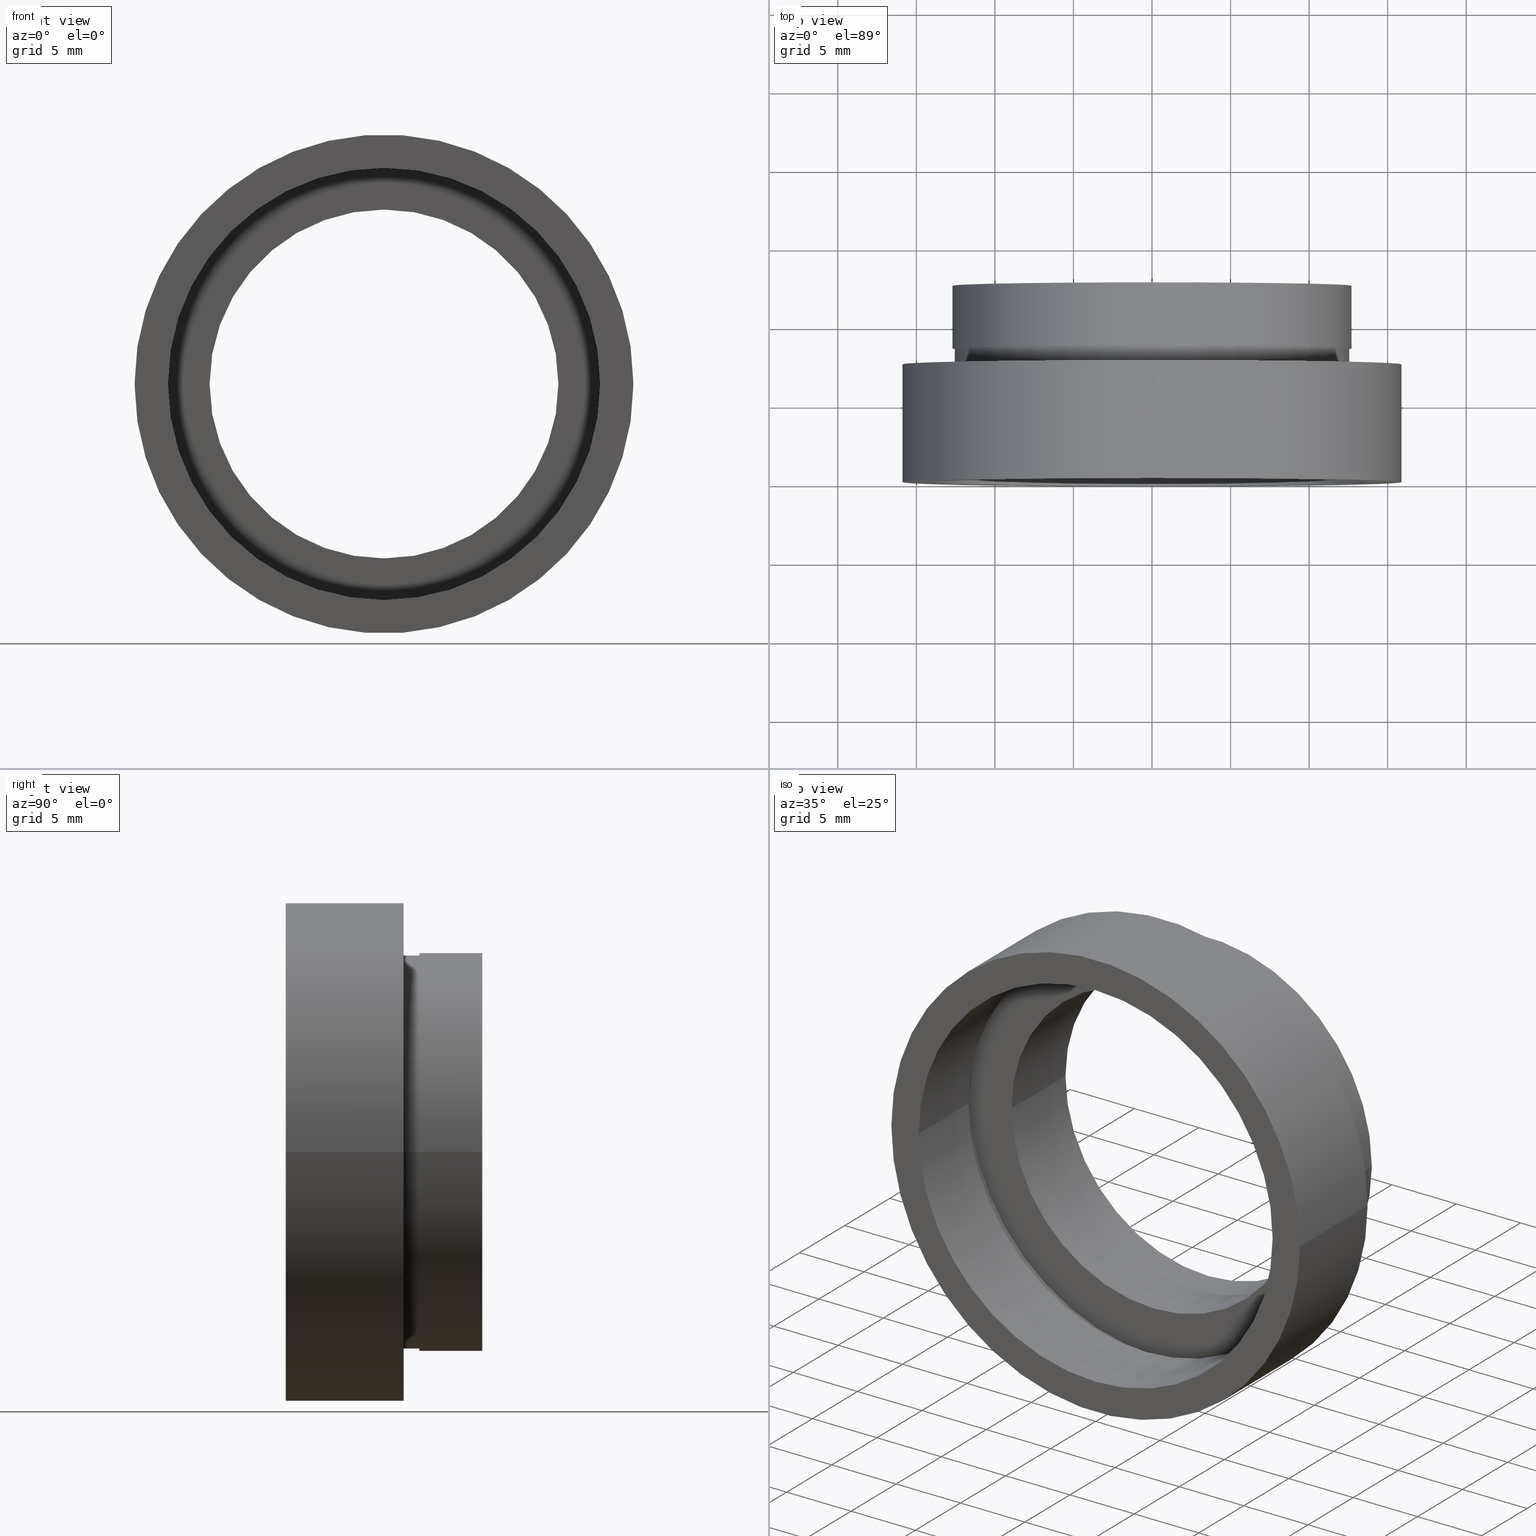
[diagram: canonical four-view strip — front | top / right | iso, engineering-drawing reading convention]
A machine part, canonical four-view strip (front | top / right | iso — engineering-drawing reading convention). The complete STEP part file that produces these views, byte-faithful:
ISO-10303-21;
HEADER;
FILE_DESCRIPTION (( 'STEP AP214' ),
    '1' );
FILE_NAME ('504068.STEP',
    '2019-10-08T05:58:54',
    ( 'user' ),
    ( '΢���й�' ),
    'SwSTEP 2.0',
    'SolidWorks 2016',
    '' );
FILE_SCHEMA (( 'AUTOMOTIVE_DESIGN' ));
ENDSEC;

DATA;
#1 = ORIENTED_EDGE ( 'NONE', *, *, #215, .T. ) ;
#2 = CARTESIAN_POINT ( 'NONE',  ( 1.394385078907593200E-015, 5.499999999999996400, 0.0000000000000000000 ) ) ;
#3 = ORIENTED_EDGE ( 'NONE', *, *, #251, .F. ) ;
#4 = DIRECTION ( 'NONE',  ( 0.0000000000000000000, 0.0000000000000000000, 1.000000000000000000 ) ) ;
#5 = AXIS2_PLACEMENT_3D ( 'NONE', #470, #411, #72 ) ;
#6 = CARTESIAN_POINT ( 'NONE',  ( 0.0000000000000000000, 16.88601823708207700, 0.0000000000000000000 ) ) ;
#7 = PLANE ( 'NONE',  #384 ) ;
#8 = DIRECTION ( 'NONE',  ( -1.224646799147351000E-016, 1.000000000000000000, -0.0000000000000000000 ) ) ;
#9 =( NAMED_UNIT ( * ) PLANE_ANGLE_UNIT ( ) SI_UNIT ( $, .RADIAN. ) );
#10 = ORIENTED_EDGE ( 'NONE', *, *, #478, .F. ) ;
#11 = DIRECTION ( 'NONE',  ( -1.000000000000000000, -1.208866533781747400E-016, 0.0000000000000000000 ) ) ;
#12 = MECHANICAL_DESIGN_GEOMETRIC_PRESENTATION_REPRESENTATION (  '', ( #450 ), #171 ) ;
#13 = APPLICATION_CONTEXT ( 'automotive_design' ) ;
#14 = SURFACE_STYLE_FILL_AREA ( #557 ) ;
#15 = ORIENTED_EDGE ( 'NONE', *, *, #132, .F. ) ;
#16 = CARTESIAN_POINT ( 'NONE',  ( 11.10000000000000100, 16.88601823708207700, 1.359357947053562400E-015 ) ) ;
#17 = CARTESIAN_POINT ( 'NONE',  ( 5.371323195044474300E-016, 12.49999999999999600, 0.0000000000000000000 ) ) ;
#18 = AXIS2_PLACEMENT_3D ( 'NONE', #122, #250, #611 ) ;
#19 = FACE_BOUND ( 'NONE', #370, .T. ) ;
#20 = FACE_BOUND ( 'NONE', #460, .T. ) ;
#21 = DIRECTION ( 'NONE',  ( -1.000000000000000000, 0.0000000000000000000, 0.0000000000000000000 ) ) ;
#22 = DIRECTION ( 'NONE',  ( -1.000000000000000000, -1.224646799147351000E-016, 0.0000000000000000000 ) ) ;
#23 = AXIS2_PLACEMENT_3D ( 'NONE', #136, #145, #94 ) ;
#24 = ORIENTED_EDGE ( 'NONE', *, *, #363, .T. ) ;
#25 = ORIENTED_EDGE ( 'NONE', *, *, #433, .F. ) ;
#26 = CYLINDRICAL_SURFACE ( 'NONE', #293, 11.10000000000000100 ) ;
#27 = DIRECTION ( 'NONE',  ( -1.000000000000000000, -2.185478394931410600E-016, 0.0000000000000000000 ) ) ;
#28 = CIRCLE ( 'NONE', #23, 13.75000000000000200 ) ;
#29 = VERTEX_POINT ( 'NONE', #560 ) ;
#30 = ORIENTED_EDGE ( 'NONE', *, *, #165, .F. ) ;
#31 = MANIFOLD_SOLID_BREP ( '��ת1', #280 ) ;
#32 =( NAMED_UNIT ( * ) SI_UNIT ( $, .STERADIAN. ) SOLID_ANGLE_UNIT ( ) );
#33 = CARTESIAN_POINT ( 'NONE',  ( 14.35000000000000000, 5.499999999999998200, 1.757368156776451600E-015 ) ) ;
#34 = AXIS2_PLACEMENT_3D ( 'NONE', #147, #539, #522 ) ;
#35 = CIRCLE ( 'NONE', #359, 11.10000000000000100 ) ;
#36 = CARTESIAN_POINT ( 'NONE',  ( 0.0000000000000000000, 16.88601823708207700, 0.0000000000000000000 ) ) ;
#37 = DIRECTION ( 'NONE',  ( 1.000000000000000000, 1.224646799147351000E-016, 0.0000000000000000000 ) ) ;
#38 = CARTESIAN_POINT ( 'NONE',  ( -11.10000000000000100, 12.49999999999999500, 0.0000000000000000000 ) ) ;
#39 = ORIENTED_EDGE ( 'NONE', *, *, #211, .T. ) ;
#40 = DIRECTION ( 'NONE',  ( -1.000000000000000000, -1.224646799147350700E-016, 0.0000000000000000000 ) ) ;
#41 = EDGE_LOOP ( 'NONE', ( #447, #542, #523, #432 ) ) ;
#42 = EDGE_LOOP ( 'NONE', ( #459, #244, #24, #418 ) ) ;
#43 = DIRECTION ( 'NONE',  ( -1.000000000000000000, -1.562813942321447500E-016, 0.0000000000000000000 ) ) ;
#44 = ADVANCED_FACE ( 'NONE', ( #329, #216 ), #435, .F. ) ;
#45 = CARTESIAN_POINT ( 'NONE',  ( 11.10000000000000100, 6.499999999999999100, 1.359357947053562400E-015 ) ) ;
#46 = FACE_OUTER_BOUND ( 'NONE', #372, .T. ) ;
#47 = PRESENTATION_LAYER_ASSIGNMENT (  '', '', ( #112 ) ) ;
#48 = UNCERTAINTY_MEASURE_WITH_UNIT (LENGTH_MEASURE( 1.000000000000000100E-005 ), #495, 'distance_accuracy_value', 'NONE');
#49 = CARTESIAN_POINT ( 'NONE',  ( -14.34999999999999600, 5.499999999999994700, 0.0000000000000000000 ) ) ;
#50 = ORIENTED_EDGE ( 'NONE', *, *, #67, .F. ) ;
#51 = CARTESIAN_POINT ( 'NONE',  ( 5.371323195044474300E-016, 12.49999999999999600, 0.0000000000000000000 ) ) ;
#52 = AXIS2_PLACEMENT_3D ( 'NONE', #426, #366, #78 ) ;
#53 = EDGE_CURVE ( 'NONE', #164, #135, #267, .T. ) ;
#54 = CARTESIAN_POINT ( 'NONE',  ( 15.87500000000000000, -3.035621465847962700E-016, 0.0000000000000000000 ) ) ;
#55 = PRESENTATION_STYLE_ASSIGNMENT (( #476 ) ) ;
#56 = DIRECTION ( 'NONE',  ( -1.224646799147351000E-016, 1.000000000000000000, -0.0000000000000000000 ) ) ;
#57 = EDGE_CURVE ( 'NONE', #304, #71, #415, .T. ) ;
#58 = CARTESIAN_POINT ( 'NONE',  ( 0.0000000000000000000, 16.88601823708207700, 0.0000000000000000000 ) ) ;
#59 =( GEOMETRIC_REPRESENTATION_CONTEXT ( 3 ) GLOBAL_UNCERTAINTY_ASSIGNED_CONTEXT ( ( #616 ) ) GLOBAL_UNIT_ASSIGNED_CONTEXT ( ( #532, #313, #509 ) ) REPRESENTATION_CONTEXT ( 'NONE', 'WORKASPACE' ) );
#60 = CARTESIAN_POINT ( 'NONE',  ( 0.0000000000000000000, 16.88601823708207700, 0.0000000000000000000 ) ) ;
#61 = SURFACE_STYLE_FILL_AREA ( #253 ) ;
#62 = CARTESIAN_POINT ( 'NONE',  ( 0.0000000000000000000, 16.88601823708207700, 0.0000000000000000000 ) ) ;
#63 = ORIENTED_EDGE ( 'NONE', *, *, #211, .F. ) ;
#64 = PRESENTATION_STYLE_ASSIGNMENT (( #167 ) ) ;
#65 = LINE ( 'NONE', #195, #581 ) ;
#66 = SURFACE_SIDE_STYLE ('',( #238 ) ) ;
#67 = EDGE_CURVE ( 'NONE', #184, #486, #124, .T. ) ;
#68 = AXIS2_PLACEMENT_3D ( 'NONE', #51, #518, #43 ) ;
#69 = DIRECTION ( 'NONE',  ( -1.000000000000000000, 0.0000000000000000000, 0.0000000000000000000 ) ) ;
#70 = ORIENTED_EDGE ( 'NONE', *, *, #441, .T. ) ;
#71 = VERTEX_POINT ( 'NONE', #274 ) ;
#72 = DIRECTION ( 'NONE',  ( -1.000000000000000000, 0.0000000000000000000, 0.0000000000000000000 ) ) ;
#73 =( LENGTH_UNIT ( ) NAMED_UNIT ( * ) SI_UNIT ( .MILLI., .METRE. ) );
#74 = DIRECTION ( 'NONE',  ( -1.224646799147351000E-016, 1.000000000000000000, -0.0000000000000000000 ) ) ;
#75 =( GEOMETRIC_REPRESENTATION_CONTEXT ( 3 ) GLOBAL_UNCERTAINTY_ASSIGNED_CONTEXT ( ( #48 ) ) GLOBAL_UNIT_ASSIGNED_CONTEXT ( ( #495, #361, #598 ) ) REPRESENTATION_CONTEXT ( 'NONE', 'WORKASPACE' ) );
#76 = EDGE_LOOP ( 'NONE', ( #199, #281 ) ) ;
#77 = VERTEX_POINT ( 'NONE', #515 ) ;
#78 = DIRECTION ( 'NONE',  ( -1.000000000000000000, -1.382249781654826400E-016, 0.0000000000000000000 ) ) ;
#79 = ORIENTED_EDGE ( 'NONE', *, *, #567, .T. ) ;
#80 =( LENGTH_UNIT ( ) NAMED_UNIT ( * ) SI_UNIT ( .MILLI., .METRE. ) );
#81 = SURFACE_STYLE_FILL_AREA ( #544 ) ;
#82 = ADVANCED_FACE ( 'NONE', ( #412, #20 ), #222, .F. ) ;
#83 = DIRECTION ( 'NONE',  ( 1.224646799147351000E-016, -1.000000000000000000, 0.0000000000000000000 ) ) ;
#84 = DIRECTION ( 'NONE',  ( -1.000000000000000000, -1.224646799147351000E-016, 0.0000000000000000000 ) ) ;
#85 = EDGE_CURVE ( 'NONE', #279, #135, #240, .T. ) ;
#86 = ADVANCED_FACE ( 'NONE', ( #301 ), #121, .T. ) ;
#87 = ORIENTED_EDGE ( 'NONE', *, *, #422, .F. ) ;
#88 = ORIENTED_EDGE ( 'NONE', *, *, #251, .T. ) ;
#89 = DIRECTION ( 'NONE',  ( -1.224646799147351000E-016, 1.000000000000000000, -0.0000000000000000000 ) ) ;
#90 = EDGE_LOOP ( 'NONE', ( #533, #111, #87, #524 ) ) ;
#91 = DIRECTION ( 'NONE',  ( -1.224646799147351000E-016, 1.000000000000000000, -0.0000000000000000000 ) ) ;
#92 = SURFACE_STYLE_FILL_AREA ( #386 ) ;
#93 = COLOUR_RGB ( '',1.000000000000000000, 1.000000000000000000, 1.000000000000000000 ) ;
#94 = DIRECTION ( 'NONE',  ( -1.000000000000000000, -1.224646799147351000E-016, 0.0000000000000000000 ) ) ;
#95 = PLANE ( 'NONE',  #521 ) ;
#96 = DIRECTION ( 'NONE',  ( -1.000000000000000000, -1.224646799147351000E-016, 0.0000000000000000000 ) ) ;
#97 = CIRCLE ( 'NONE', #156, 15.87499999999999600 ) ;
#98 = DIRECTION ( 'NONE',  ( -1.224646799147351000E-016, 1.000000000000000000, -0.0000000000000000000 ) ) ;
#99 = CARTESIAN_POINT ( 'NONE',  ( 11.10000000000000100, 12.49999999999999800, 0.0000000000000000000 ) ) ;
#100 = ORIENTED_EDGE ( 'NONE', *, *, #153, .T. ) ;
#101 = AXIS2_PLACEMENT_3D ( 'NONE', #307, #457, #11 ) ;
#102 = DIRECTION ( 'NONE',  ( -1.000000000000000000, -1.224646799147350700E-016, 0.0000000000000000000 ) ) ;
#103 = CARTESIAN_POINT ( 'NONE',  ( -11.10000000000000100, 16.88601823708207700, 0.0000000000000000000 ) ) ;
#104 = CYLINDRICAL_SURFACE ( 'NONE', #417, 15.87500000000000000 ) ;
#105 = DIRECTION ( 'NONE',  ( -1.000000000000000000, -1.382249781654826400E-016, 0.0000000000000000000 ) ) ;
#106 = LINE ( 'NONE', #423, #220 ) ;
#107 = CARTESIAN_POINT ( 'NONE',  ( 13.75000000000000400, 1.683889348827607900E-015, 1.683889348827611000E-015 ) ) ;
#108 = DIRECTION ( 'NONE',  ( -1.224646799147351000E-016, 1.000000000000000000, -0.0000000000000000000 ) ) ;
#109 = AXIS2_PLACEMENT_3D ( 'NONE', #516, #56, #258 ) ;
#110 = EDGE_LOOP ( 'NONE', ( #263, #294 ) ) ;
#111 = ORIENTED_EDGE ( 'NONE', *, *, #308, .T. ) ;
#112 = STYLED_ITEM ( 'NONE', ( #55 ), #134 ) ;
#113 = CIRCLE ( 'NONE', #306, 12.55000000000000100 ) ;
#114 = CARTESIAN_POINT ( 'NONE',  ( -15.87500000000000000, 16.88601823708207300, 0.0000000000000000000 ) ) ;
#115 = CIRCLE ( 'NONE', #101, 14.34999999999999800 ) ;
#116 = ADVANCED_FACE ( 'NONE', ( #119 ), #189, .T. ) ;
#117 = DIRECTION ( 'NONE',  ( -1.000000000000000000, -1.092739197465705300E-016, 0.0000000000000000000 ) ) ;
#118 = FACE_BOUND ( 'NONE', #110, .T. ) ;
#119 = FACE_OUTER_BOUND ( 'NONE', #583, .T. ) ;
#120 = DIRECTION ( 'NONE',  ( 1.224646799147351000E-016, -1.000000000000000000, 0.0000000000000000000 ) ) ;
#121 = CYLINDRICAL_SURFACE ( 'NONE', #607, 12.69999999999999900 ) ;
#122 = CARTESIAN_POINT ( 'NONE',  ( 1.271920398992858000E-015, 6.499999999999997300, 0.0000000000000000000 ) ) ;
#123 = CARTESIAN_POINT ( 'NONE',  ( 1.026991039163387700E-015, 8.499999999999998200, 0.0000000000000000000 ) ) ;
#124 = LINE ( 'NONE', #196, #485 ) ;
#125 = ORIENTED_EDGE ( 'NONE', *, *, #393, .F. ) ;
#126 =( LENGTH_UNIT ( ) NAMED_UNIT ( * ) SI_UNIT ( .MILLI., .METRE. ) );
#127 = ORIENTED_EDGE ( 'NONE', *, *, #269, .T. ) ;
#128 = ORIENTED_EDGE ( 'NONE', *, *, #182, .F. ) ;
#129 = AXIS2_PLACEMENT_3D ( 'NONE', #410, #83, #246 ) ;
#130 = FACE_OUTER_BOUND ( 'NONE', #192, .T. ) ;
#131 =( NAMED_UNIT ( * ) SI_UNIT ( $, .STERADIAN. ) SOLID_ANGLE_UNIT ( ) );
#132 = EDGE_CURVE ( 'NONE', #322, #77, #490, .T. ) ;
#133 = UNCERTAINTY_MEASURE_WITH_UNIT (LENGTH_MEASURE( 1.000000000000000100E-005 ), #80, 'distance_accuracy_value', 'NONE');
#134 = ADVANCED_FACE ( 'NONE', ( #436 ), #403, .F. ) ;
#135 = VERTEX_POINT ( 'NONE', #606 ) ;
#136 = CARTESIAN_POINT ( 'NONE',  ( 2.067940818438636100E-015, 0.0000000000000000000, 0.0000000000000000000 ) ) ;
#137 = AXIS2_PLACEMENT_3D ( 'NONE', #123, #256, #377 ) ;
#138 = AXIS2_PLACEMENT_3D ( 'NONE', #36, #108, #613 ) ;
#139 = CYLINDRICAL_SURFACE ( 'NONE', #588, 14.34999999999999800 ) ;
#140 = ORIENTED_EDGE ( 'NONE', *, *, #567, .F. ) ;
#141 = EDGE_LOOP ( 'NONE', ( #550, #209 ) ) ;
#142 = CARTESIAN_POINT ( 'NONE',  ( 1.394385078907593200E-015, 5.499999999999996400, 0.0000000000000000000 ) ) ;
#143 = FACE_OUTER_BOUND ( 'NONE', #558, .T. ) ;
#144 = FILL_AREA_STYLE_COLOUR ( '', #568 ) ;
#145 = DIRECTION ( 'NONE',  ( -1.224646799147351000E-016, 1.000000000000000000, -0.0000000000000000000 ) ) ;
#146 = SURFACE_STYLE_FILL_AREA ( #623 ) ;
#147 = CARTESIAN_POINT ( 'NONE',  ( 1.394385078907593200E-015, 5.499999999999996400, 0.0000000000000000000 ) ) ;
#148 = ORIENTED_EDGE ( 'NONE', *, *, #326, .T. ) ;
#149 = AXIS2_PLACEMENT_3D ( 'NONE', #559, #324, #117 ) ;
#150 = VERTEX_POINT ( 'NONE', #480 ) ;
#151 = DIRECTION ( 'NONE',  ( -1.000000000000000000, -1.261617073437677800E-016, 0.0000000000000000000 ) ) ;
#152 = LINE ( 'NONE', #114, #402 ) ;
#153 = EDGE_CURVE ( 'NONE', #71, #205, #285, .T. ) ;
#154 = CIRCLE ( 'NONE', #442, 13.75000000000000200 ) ;
#155 = UNCERTAINTY_MEASURE_WITH_UNIT (LENGTH_MEASURE( 1.000000000000000100E-005 ), #126, 'distance_accuracy_value', 'NONE');
#156 = AXIS2_PLACEMENT_3D ( 'NONE', #278, #334, #102 ) ;
#157 = EDGE_LOOP ( 'NONE', ( #454, #39 ) ) ;
#158 = EDGE_LOOP ( 'NONE', ( #50, #217, #287, #127 ) ) ;
#159 = ORIENTED_EDGE ( 'NONE', *, *, #53, .T. ) ;
#160 = DIRECTION ( 'NONE',  ( -1.224646799147351000E-016, 1.000000000000000000, -0.0000000000000000000 ) ) ;
#161 = EDGE_CURVE ( 'NONE', #440, #184, #180, .T. ) ;
#162 = AXIS2_PLACEMENT_3D ( 'NONE', #17, #369, #566 ) ;
#163 = ORIENTED_EDGE ( 'NONE', *, *, #165, .T. ) ;
#164 = VERTEX_POINT ( 'NONE', #445 ) ;
#165 = EDGE_CURVE ( 'NONE', #205, #71, #154, .T. ) ;
#166 = DIRECTION ( 'NONE',  ( -1.000000000000000000, -1.224646799147351000E-016, 0.0000000000000000000 ) ) ;
#167 = SURFACE_STYLE_USAGE ( .BOTH. , #276 ) ;
#168 = FACE_BOUND ( 'NONE', #364, .T. ) ;
#169 = AXIS2_PLACEMENT_3D ( 'NONE', #170, #328, #166 ) ;
#170 = CARTESIAN_POINT ( 'NONE',  ( 2.067940818438636100E-015, 0.0000000000000000000, 0.0000000000000000000 ) ) ;
#171 =( GEOMETRIC_REPRESENTATION_CONTEXT ( 3 ) GLOBAL_UNCERTAINTY_ASSIGNED_CONTEXT ( ( #186 ) ) GLOBAL_UNIT_ASSIGNED_CONTEXT ( ( #570, #9, #575 ) ) REPRESENTATION_CONTEXT ( 'NONE', 'WORKASPACE' ) );
#172 = DIRECTION ( 'NONE',  ( -1.224646799147351000E-016, 1.000000000000000000, 0.0000000000000000000 ) ) ;
#173 = VERTEX_POINT ( 'NONE', #582 ) ;
#174 = ORIENTED_EDGE ( 'NONE', *, *, #265, .T. ) ;
#175 = EDGE_LOOP ( 'NONE', ( #63, #314, #100, #3 ) ) ;
#176 = DIRECTION ( 'NONE',  ( -1.224646799147351000E-016, 1.000000000000000000, -0.0000000000000000000 ) ) ;
#177 = EDGE_CURVE ( 'NONE', #77, #483, #35, .T. ) ;
#178 = DIRECTION ( 'NONE',  ( -1.000000000000000000, -1.208866533781747400E-016, 0.0000000000000000000 ) ) ;
#179 = ADVANCED_FACE ( 'NONE', ( #46 ), #390, .F. ) ;
#180 = CIRCLE ( 'NONE', #371, 14.34999999999999800 ) ;
#181 = FILL_AREA_STYLE ('',( #144 ) ) ;
#182 = EDGE_CURVE ( 'NONE', #200, #173, #272, .T. ) ;
#183 = DIRECTION ( 'NONE',  ( -1.224646799147351000E-016, 1.000000000000000000, -0.0000000000000000000 ) ) ;
#184 = VERTEX_POINT ( 'NONE', #33 ) ;
#185 = ORIENTED_EDGE ( 'NONE', *, *, #303, .T. ) ;
#186 = UNCERTAINTY_MEASURE_WITH_UNIT (LENGTH_MEASURE( 1.000000000000000100E-005 ), #570, 'distance_accuracy_value', 'NONE');
#187 = DIRECTION ( 'NONE',  ( -1.224646799147351000E-016, 1.000000000000000000, -0.0000000000000000000 ) ) ;
#188 = AXIS2_PLACEMENT_3D ( 'NONE', #305, #218, #201 ) ;
#189 = CYLINDRICAL_SURFACE ( 'NONE', #138, 12.69999999999999900 ) ;
#190 = DIRECTION ( 'NONE',  ( -1.224646799147351000E-016, 1.000000000000000000, -0.0000000000000000000 ) ) ;
#191 = CARTESIAN_POINT ( 'NONE',  ( 1.394385078907593200E-015, 5.499999999999996400, 0.0000000000000000000 ) ) ;
#192 = EDGE_LOOP ( 'NONE', ( #494, #174 ) ) ;
#193 = DIRECTION ( 'NONE',  ( -1.000000000000000000, -2.417733067563494800E-016, 0.0000000000000000000 ) ) ;
#194 = FACE_OUTER_BOUND ( 'NONE', #175, .T. ) ;
#195 = CARTESIAN_POINT ( 'NONE',  ( -13.75000000000000200, 16.88601823708207700, 0.0000000000000000000 ) ) ;
#196 = CARTESIAN_POINT ( 'NONE',  ( 14.34999999999999800, 16.88601823708208000, 1.757368156776451600E-015 ) ) ;
#197 = CARTESIAN_POINT ( 'NONE',  ( -12.54999999999999900, 8.499999999999996400, 0.0000000000000000000 ) ) ;
#198 = FILL_AREA_STYLE_COLOUR ( '', #93 ) ;
#199 = ORIENTED_EDGE ( 'NONE', *, *, #290, .F. ) ;
#200 = VERTEX_POINT ( 'NONE', #320 ) ;
#201 = DIRECTION ( 'NONE',  ( -1.000000000000000000, 0.0000000000000000000, 0.0000000000000000000 ) ) ;
#202 = CARTESIAN_POINT ( 'NONE',  ( 2.067940818438636500E-015, -3.469446951953614200E-015, 0.0000000000000000000 ) ) ;
#203 = FACE_OUTER_BOUND ( 'NONE', #482, .T. ) ;
#204 = CARTESIAN_POINT ( 'NONE',  ( 5.371323195044474300E-016, 12.49999999999999600, 0.0000000000000000000 ) ) ;
#205 = VERTEX_POINT ( 'NONE', #342 ) ;
#206 = PRESENTATION_LAYER_ASSIGNMENT (  '', '', ( #221 ) ) ;
#207 = ORIENTED_EDGE ( 'NONE', *, *, #215, .F. ) ;
#208 = CARTESIAN_POINT ( 'NONE',  ( -12.69999999999999600, 8.499999999999996400, 0.0000000000000000000 ) ) ;
#209 = ORIENTED_EDGE ( 'NONE', *, *, #419, .T. ) ;
#210 = CIRCLE ( 'NONE', #465, 11.10000000000000000 ) ;
#211 = EDGE_CURVE ( 'NONE', #304, #492, #28, .T. ) ;
#212 = FACE_OUTER_BOUND ( 'NONE', #158, .T. ) ;
#213 = PRODUCT_DEFINITION_CONTEXT ( 'detailed design', #13, 'design' ) ;
#214 = STYLED_ITEM ( 'NONE', ( #64 ), #505 ) ;
#215 = EDGE_CURVE ( 'NONE', #486, #150, #538, .T. ) ;
#216 = FACE_BOUND ( 'NONE', #157, .T. ) ;
#217 = ORIENTED_EDGE ( 'NONE', *, *, #161, .F. ) ;
#218 = DIRECTION ( 'NONE',  ( -1.224646799147351000E-016, 1.000000000000000000, -0.0000000000000000000 ) ) ;
#219 = SURFACE_STYLE_USAGE ( .BOTH. , #344 ) ;
#220 = VECTOR ( 'NONE', #335, 1000.000000000000000 ) ;
#221 = STYLED_ITEM ( 'NONE', ( #563 ), #86 ) ;
#222 = PLANE ( 'NONE',  #332 ) ;
#223 = ORIENTED_EDGE ( 'NONE', *, *, #473, .F. ) ;
#224 =( NAMED_UNIT ( * ) SI_UNIT ( $, .STERADIAN. ) SOLID_ANGLE_UNIT ( ) );
#225 = CYLINDRICAL_SURFACE ( 'NONE', #484, 11.10000000000000100 ) ;
#226 = PLANE ( 'NONE',  #129 ) ;
#227 = CYLINDRICAL_SURFACE ( 'NONE', #5, 12.55000000000000100 ) ;
#228 = CARTESIAN_POINT ( 'NONE',  ( 15.87500000000000000, 16.88601823708208000, 1.944126793646423200E-015 ) ) ;
#229 = ORIENTED_EDGE ( 'NONE', *, *, #257, .F. ) ;
#230 = DIRECTION ( 'NONE',  ( -1.000000000000000000, -1.562813942321447500E-016, 0.0000000000000000000 ) ) ;
#231 = ADVANCED_FACE ( 'NONE', ( #376, #519 ), #7, .F. ) ;
#232 = FILL_AREA_STYLE_COLOUR ( '', #254 ) ;
#233 = ORIENTED_EDGE ( 'NONE', *, *, #85, .F. ) ;
#234 = MECHANICAL_DESIGN_GEOMETRIC_PRESENTATION_REPRESENTATION (  '', ( #352 ), #59 ) ;
#235 = ADVANCED_FACE ( 'NONE', ( #168, #260 ), #226, .F. ) ;
#236 = DIRECTION ( 'NONE',  ( -1.000000000000000000, -1.562813942321447800E-016, 0.0000000000000000000 ) ) ;
#237 = DIRECTION ( 'NONE',  ( -1.224646799147351000E-016, 1.000000000000000000, -0.0000000000000000000 ) ) ;
#238 = SURFACE_STYLE_FILL_AREA ( #181 ) ;
#239 = VECTOR ( 'NONE', #358, 1000.000000000000000 ) ;
#240 = CIRCLE ( 'NONE', #149, 15.87500000000000000 ) ;
#241 = SURFACE_SIDE_STYLE ('',( #275 ) ) ;
#242 = CARTESIAN_POINT ( 'NONE',  ( 1.149455719078122700E-015, 7.499999999999998200, 0.0000000000000000000 ) ) ;
#243 = ADVANCED_FACE ( 'NONE', ( #319 ), #227, .T. ) ;
#244 = ORIENTED_EDGE ( 'NONE', *, *, #182, .T. ) ;
#245 = MECHANICAL_DESIGN_GEOMETRIC_PRESENTATION_REPRESENTATION (  '', ( #221 ), #75 ) ;
#246 = DIRECTION ( 'NONE',  ( 1.000000000000000000, 1.224646799147351000E-016, 0.0000000000000000000 ) ) ;
#247 = VECTOR ( 'NONE', #237, 1000.000000000000000 ) ;
#248 = ORIENTED_EDGE ( 'NONE', *, *, #419, .F. ) ;
#249 = DIRECTION ( 'NONE',  ( -1.000000000000000000, -1.365923996832131900E-016, 0.0000000000000000000 ) ) ;
#250 = DIRECTION ( 'NONE',  ( -1.224646799147351000E-016, 1.000000000000000000, -0.0000000000000000000 ) ) ;
#251 = EDGE_CURVE ( 'NONE', #492, #205, #65, .T. ) ;
#252 = FACE_OUTER_BOUND ( 'NONE', #579, .T. ) ;
#253 = FILL_AREA_STYLE ('',( #198 ) ) ;
#254 = COLOUR_RGB ( '',1.000000000000000000, 1.000000000000000000, 1.000000000000000000 ) ;
#255 = DIRECTION ( 'NONE',  ( -1.224646799147351000E-016, 1.000000000000000000, -0.0000000000000000000 ) ) ;
#256 = DIRECTION ( 'NONE',  ( -1.224646799147351000E-016, 1.000000000000000000, -0.0000000000000000000 ) ) ;
#257 = EDGE_CURVE ( 'NONE', #483, #77, #463, .T. ) ;
#258 = DIRECTION ( 'NONE',  ( -1.000000000000000000, -1.365923996832131600E-016, 0.0000000000000000000 ) ) ;
#259 = CARTESIAN_POINT ( 'NONE',  ( -12.69999999999999900, 16.88601823708207700, 0.0000000000000000000 ) ) ;
#260 = FACE_OUTER_BOUND ( 'NONE', #141, .T. ) ;
#261 = ADVANCED_FACE ( 'NONE', ( #212 ), #139, .F. ) ;
#262 = ORIENTED_EDGE ( 'NONE', *, *, #67, .T. ) ;
#263 = ORIENTED_EDGE ( 'NONE', *, *, #466, .T. ) ;
#264 = CYLINDRICAL_SURFACE ( 'NONE', #504, 13.75000000000000200 ) ;
#265 = EDGE_CURVE ( 'NONE', #184, #440, #360, .T. ) ;
#266 =( GEOMETRIC_REPRESENTATION_CONTEXT ( 3 ) GLOBAL_UNCERTAINTY_ASSIGNED_CONTEXT ( ( #133 ) ) GLOBAL_UNIT_ASSIGNED_CONTEXT ( ( #80, #451, #32 ) ) REPRESENTATION_CONTEXT ( 'NONE', 'WORKASPACE' ) );
#267 = LINE ( 'NONE', #228, #247 ) ;
#268 = DIRECTION ( 'NONE',  ( -1.000000000000000000, -1.365923996832131900E-016, 0.0000000000000000000 ) ) ;
#269 = EDGE_CURVE ( 'NONE', #150, #486, #115, .T. ) ;
#270 = EDGE_LOOP ( 'NONE', ( #339, #608 ) ) ;
#271 = CARTESIAN_POINT ( 'NONE',  ( -14.34999999999999800, 16.88601823708207300, 0.0000000000000000000 ) ) ;
#272 = CIRCLE ( 'NONE', #529, 12.55000000000000100 ) ;
#273 =( GEOMETRIC_REPRESENTATION_CONTEXT ( 3 ) GLOBAL_UNCERTAINTY_ASSIGNED_CONTEXT ( ( #528 ) ) GLOBAL_UNIT_ASSIGNED_CONTEXT ( ( #404, #531, #224 ) ) REPRESENTATION_CONTEXT ( 'NONE', 'WORKASPACE' ) );
#274 = CARTESIAN_POINT ( 'NONE',  ( 13.75000000000000400, 5.499999999999998200, 1.683889348827611000E-015 ) ) ;
#275 = SURFACE_STYLE_FILL_AREA ( #381 ) ;
#276 = SURFACE_SIDE_STYLE ('',( #81 ) ) ;
#277 = PRESENTATION_STYLE_ASSIGNMENT (( #397 ) ) ;
#278 = CARTESIAN_POINT ( 'NONE',  ( 2.067940818438636500E-015, -3.469446951953614200E-015, 0.0000000000000000000 ) ) ;
#279 = VERTEX_POINT ( 'NONE', #591 ) ;
#280 = CLOSED_SHELL ( 'NONE', ( #416, #569, #116, #394, #179, #505, #44, #134, #512, #261, #601, #367, #231, #86, #82, #243, #235, #621 ) ) ;
#281 = ORIENTED_EDGE ( 'NONE', *, *, #326, .F. ) ;
#282 = MECHANICAL_DESIGN_GEOMETRIC_PRESENTATION_REPRESENTATION (  '', ( #112 ), #346 ) ;
#283 =( NAMED_UNIT ( * ) SI_UNIT ( $, .STERADIAN. ) SOLID_ANGLE_UNIT ( ) );
#284 = FACE_OUTER_BOUND ( 'NONE', #41, .T. ) ;
#285 = CIRCLE ( 'NONE', #309, 13.75000000000000200 ) ;
#286 = CARTESIAN_POINT ( 'NONE',  ( 12.69999999999999900, 12.49999999999999800, 1.555301434917138400E-015 ) ) ;
#287 = ORIENTED_EDGE ( 'NONE', *, *, #496, .T. ) ;
#288 = EDGE_LOOP ( 'NONE', ( #449, #350 ) ) ;
#289 = AXIS2_PLACEMENT_3D ( 'NONE', #242, #554, #499 ) ;
#290 = EDGE_CURVE ( 'NONE', #331, #556, #597, .T. ) ;
#291 = VERTEX_POINT ( 'NONE', #197 ) ;
#292 =( NAMED_UNIT ( * ) SI_UNIT ( $, .STERADIAN. ) SOLID_ANGLE_UNIT ( ) );
#293 = AXIS2_PLACEMENT_3D ( 'NONE', #469, #399, #472 ) ;
#294 = ORIENTED_EDGE ( 'NONE', *, *, #409, .T. ) ;
#295 = ORIENTED_EDGE ( 'NONE', *, *, #57, .F. ) ;
#296 = DIRECTION ( 'NONE',  ( -1.000000000000000000, -2.417733067563494800E-016, 0.0000000000000000000 ) ) ;
#297 = PRESENTATION_STYLE_ASSIGNMENT (( #219 ) ) ;
#298 = EDGE_CURVE ( 'NONE', #556, #338, #624, .T. ) ;
#299 = VERTEX_POINT ( 'NONE', #555 ) ;
#300 = CARTESIAN_POINT ( 'NONE',  ( 12.69999999999999900, 8.500000000000000000, 1.555301434917138400E-015 ) ) ;
#301 = FACE_OUTER_BOUND ( 'NONE', #526, .T. ) ;
#302 = DIRECTION ( 'NONE',  ( -1.224646799147351000E-016, 1.000000000000000000, -0.0000000000000000000 ) ) ;
#303 = EDGE_CURVE ( 'NONE', #29, #483, #497, .T. ) ;
#304 = VERTEX_POINT ( 'NONE', #107 ) ;
#305 = CARTESIAN_POINT ( 'NONE',  ( 0.0000000000000000000, 16.88601823708207700, 0.0000000000000000000 ) ) ;
#306 = AXIS2_PLACEMENT_3D ( 'NONE', #356, #585, #456 ) ;
#307 = CARTESIAN_POINT ( 'NONE',  ( 1.271920398992858000E-015, 6.499999999999997300, 0.0000000000000000000 ) ) ;
#308 = EDGE_CURVE ( 'NONE', #200, #455, #106, .T. ) ;
#309 = AXIS2_PLACEMENT_3D ( 'NONE', #142, #91, #151 ) ;
#310 = COLOUR_RGB ( '',1.000000000000000000, 1.000000000000000000, 1.000000000000000000 ) ;
#311 = CARTESIAN_POINT ( 'NONE',  ( 1.149455719078122700E-015, 7.499999999999998200, 0.0000000000000000000 ) ) ;
#312 = DIRECTION ( 'NONE',  ( -1.224646799147351000E-016, 1.000000000000000000, -0.0000000000000000000 ) ) ;
#313 =( NAMED_UNIT ( * ) PLANE_ANGLE_UNIT ( ) SI_UNIT ( $, .RADIAN. ) );
#314 = ORIENTED_EDGE ( 'NONE', *, *, #57, .T. ) ;
#315 = DIRECTION ( 'NONE',  ( -1.224646799147351000E-016, 1.000000000000000000, -0.0000000000000000000 ) ) ;
#316 = EDGE_CURVE ( 'NONE', #338, #299, #355, .T. ) ;
#317 = CARTESIAN_POINT ( 'NONE',  ( 0.0000000000000000000, 16.88601823708207700, 0.0000000000000000000 ) ) ;
#318 = LINE ( 'NONE', #271, #561 ) ;
#319 = FACE_OUTER_BOUND ( 'NONE', #42, .T. ) ;
#320 = CARTESIAN_POINT ( 'NONE',  ( 12.55000000000000200, 7.500000000000000000, 1.536931732929928400E-015 ) ) ;
#321 = PRESENTATION_LAYER_ASSIGNMENT (  '', '', ( #352 ) ) ;
#322 = VERTEX_POINT ( 'NONE', #45 ) ;
#323 = ORIENTED_EDGE ( 'NONE', *, *, #269, .F. ) ;
#324 = DIRECTION ( 'NONE',  ( -1.224646799147351000E-016, 1.000000000000000000, -0.0000000000000000000 ) ) ;
#325 = COLOUR_RGB ( '',1.000000000000000000, 1.000000000000000000, 1.000000000000000000 ) ;
#326 = EDGE_CURVE ( 'NONE', #556, #331, #343, .T. ) ;
#327 =( NAMED_UNIT ( * ) PLANE_ANGLE_UNIT ( ) SI_UNIT ( $, .RADIAN. ) );
#328 = DIRECTION ( 'NONE',  ( -1.224646799147351000E-016, 1.000000000000000000, -0.0000000000000000000 ) ) ;
#329 = FACE_OUTER_BOUND ( 'NONE', #288, .T. ) ;
#330 = PRODUCT_DEFINITION_FORMATION_WITH_SPECIFIED_SOURCE ( '�κ�', '', #540, .NOT_KNOWN. ) ;
#331 = VERTEX_POINT ( 'NONE', #208 ) ;
#332 = AXIS2_PLACEMENT_3D ( 'NONE', #506, #573, #96 ) ;
#333 = CIRCLE ( 'NONE', #52, 12.55000000000000100 ) ;
#334 = DIRECTION ( 'NONE',  ( -1.224646799147351000E-016, 1.000000000000000000, -0.0000000000000000000 ) ) ;
#335 = DIRECTION ( 'NONE',  ( -1.224646799147351000E-016, 1.000000000000000000, -0.0000000000000000000 ) ) ;
#336 = DIRECTION ( 'NONE',  ( -1.224646799147351000E-016, 1.000000000000000000, -0.0000000000000000000 ) ) ;
#337 = DIRECTION ( 'NONE',  ( -1.224646799147351000E-016, 1.000000000000000000, -0.0000000000000000000 ) ) ;
#338 = VERTEX_POINT ( 'NONE', #286 ) ;
#339 = ORIENTED_EDGE ( 'NONE', *, *, #473, .T. ) ;
#340 = PRODUCT_RELATED_PRODUCT_CATEGORY ( 'part', '', ( #540 ) ) ;
#341 = SURFACE_SIDE_STYLE ('',( #537 ) ) ;
#342 = CARTESIAN_POINT ( 'NONE',  ( -13.75000000000000000, 5.499999999999994700, 0.0000000000000000000 ) ) ;
#343 = CIRCLE ( 'NONE', #511, 12.69999999999999800 ) ;
#344 = SURFACE_SIDE_STYLE ('',( #14 ) ) ;
#345 = AXIS2_PLACEMENT_3D ( 'NONE', #596, #4, #548 ) ;
#346 =( GEOMETRIC_REPRESENTATION_CONTEXT ( 3 ) GLOBAL_UNCERTAINTY_ASSIGNED_CONTEXT ( ( #498 ) ) GLOBAL_UNIT_ASSIGNED_CONTEXT ( ( #461, #327, #292 ) ) REPRESENTATION_CONTEXT ( 'NONE', 'WORKASPACE' ) );
#347 = CIRCLE ( 'NONE', #18, 11.10000000000000000 ) ;
#348 = PRODUCT_DEFINITION ( 'δ֪', '', #330, #213 ) ;
#349 = ORIENTED_EDGE ( 'NONE', *, *, #316, .F. ) ;
#350 = ORIENTED_EDGE ( 'NONE', *, *, #438, .F. ) ;
#351 =( NAMED_UNIT ( * ) PLANE_ANGLE_UNIT ( ) SI_UNIT ( $, .RADIAN. ) );
#352 = STYLED_ITEM ( 'NONE', ( #388 ), #394 ) ;
#353 = SHAPE_DEFINITION_REPRESENTATION ( #365, #510 ) ;
#354 = FILL_AREA_STYLE_COLOUR ( '', #325 ) ;
#355 = CIRCLE ( 'NONE', #162, 12.69999999999999900 ) ;
#356 = CARTESIAN_POINT ( 'NONE',  ( 1.149455719078122700E-015, 7.499999999999998200, 0.0000000000000000000 ) ) ;
#357 =( NAMED_UNIT ( * ) PLANE_ANGLE_UNIT ( ) SI_UNIT ( $, .RADIAN. ) );
#358 = DIRECTION ( 'NONE',  ( -1.224646799147351000E-016, 1.000000000000000000, -0.0000000000000000000 ) ) ;
#359 = AXIS2_PLACEMENT_3D ( 'NONE', #204, #312, #230 ) ;
#360 = CIRCLE ( 'NONE', #34, 14.34999999999999800 ) ;
#361 =( NAMED_UNIT ( * ) PLANE_ANGLE_UNIT ( ) SI_UNIT ( $, .RADIAN. ) );
#362 = CARTESIAN_POINT ( 'NONE',  ( 1.271920398992858000E-015, 6.499999999999997300, 0.0000000000000000000 ) ) ;
#363 = EDGE_CURVE ( 'NONE', #173, #291, #590, .T. ) ;
#364 = EDGE_LOOP ( 'NONE', ( #25, #128 ) ) ;
#365 = PRODUCT_DEFINITION_SHAPE ( 'NONE', 'NONE',  #348 ) ;
#366 = DIRECTION ( 'NONE',  ( -1.224646799147351000E-016, 1.000000000000000000, -0.0000000000000000000 ) ) ;
#367 = ADVANCED_FACE ( 'NONE', ( #203 ), #26, .F. ) ;
#368 = VECTOR ( 'NONE', #8, 1000.000000000000000 ) ;
#369 = DIRECTION ( 'NONE',  ( -1.224646799147351000E-016, 1.000000000000000000, -0.0000000000000000000 ) ) ;
#370 = EDGE_LOOP ( 'NONE', ( #30, #525 ) ) ;
#371 = AXIS2_PLACEMENT_3D ( 'NONE', #2, #98, #513 ) ;
#372 = EDGE_LOOP ( 'NONE', ( #479, #262, #1, #446 ) ) ;
#373 = SURFACE_STYLE_USAGE ( .BOTH. , #603 ) ;
#374 = SURFACE_STYLE_USAGE ( .BOTH. , #66 ) ;
#375 = PRODUCT_CONTEXT ( 'NONE', #414, 'mechanical' ) ;
#376 = FACE_BOUND ( 'NONE', #379, .T. ) ;
#377 = DIRECTION ( 'NONE',  ( -1.000000000000000000, -1.382249781654826400E-016, 0.0000000000000000000 ) ) ;
#378 = MECHANICAL_DESIGN_GEOMETRIC_PRESENTATION_REPRESENTATION (  '', ( #408 ), #391 ) ;
#379 = EDGE_LOOP ( 'NONE', ( #229, #398 ) ) ;
#380 = ORIENTED_EDGE ( 'NONE', *, *, #422, .T. ) ;
#381 = FILL_AREA_STYLE ('',( #464 ) ) ;
#382 = FACE_OUTER_BOUND ( 'NONE', #90, .T. ) ;
#383 = CARTESIAN_POINT ( 'NONE',  ( 12.69999999999999900, 16.88601823708207700, 1.555301434917138400E-015 ) ) ;
#384 = AXIS2_PLACEMENT_3D ( 'NONE', #99, #622, #37 ) ;
#385 = FILL_AREA_STYLE_COLOUR ( '', #517 ) ;
#386 = FILL_AREA_STYLE ('',( #354 ) ) ;
#387 = DIRECTION ( 'NONE',  ( -1.000000000000000000, 0.0000000000000000000, 0.0000000000000000000 ) ) ;
#388 = PRESENTATION_STYLE_ASSIGNMENT (( #503 ) ) ;
#389 = CARTESIAN_POINT ( 'NONE',  ( 1.271920398992858000E-015, 6.499999999999997300, 0.0000000000000000000 ) ) ;
#390 = CYLINDRICAL_SURFACE ( 'NONE', #413, 14.34999999999999800 ) ;
#391 =( GEOMETRIC_REPRESENTATION_CONTEXT ( 3 ) GLOBAL_UNCERTAINTY_ASSIGNED_CONTEXT ( ( #155 ) ) GLOBAL_UNIT_ASSIGNED_CONTEXT ( ( #126, #604, #283 ) ) REPRESENTATION_CONTEXT ( 'NONE', 'WORKASPACE' ) );
#392 = STYLED_ITEM ( 'NONE', ( #277 ), #31 ) ;
#393 = EDGE_CURVE ( 'NONE', #425, #279, #152, .T. ) ;
#394 = ADVANCED_FACE ( 'NONE', ( #284 ), #225, .F. ) ;
#395 = PLANE ( 'NONE',  #437 ) ;
#396 = DIRECTION ( 'NONE',  ( 1.000000000000000000, 1.224646799147351000E-016, 0.0000000000000000000 ) ) ;
#397 = SURFACE_STYLE_USAGE ( .BOTH. , #241 ) ;
#398 = ORIENTED_EDGE ( 'NONE', *, *, #177, .F. ) ;
#399 = DIRECTION ( 'NONE',  ( -1.224646799147351000E-016, 1.000000000000000000, -0.0000000000000000000 ) ) ;
#400 = PRESENTATION_LAYER_ASSIGNMENT (  '', '', ( #408 ) ) ;
#401 = STYLED_ITEM ( 'NONE', ( #605 ), #367 ) ;
#402 = VECTOR ( 'NONE', #491, 1000.000000000000000 ) ;
#403 = CYLINDRICAL_SURFACE ( 'NONE', #188, 13.75000000000000200 ) ;
#404 =( LENGTH_UNIT ( ) NAMED_UNIT ( * ) SI_UNIT ( .MILLI., .METRE. ) );
#405 = APPLICATION_PROTOCOL_DEFINITION ( 'draft international standard', 'automotive_design', 1998, #414 ) ;
#406 = CARTESIAN_POINT ( 'NONE',  ( 0.0000000000000000000, 16.88601823708207700, 0.0000000000000000000 ) ) ;
#407 = CARTESIAN_POINT ( 'NONE',  ( 11.10000000000000100, 6.499999999999999100, 0.0000000000000000000 ) ) ;
#408 = STYLED_ITEM ( 'NONE', ( #427 ), #510 ) ;
#409 = EDGE_CURVE ( 'NONE', #322, #29, #347, .T. ) ;
#410 = CARTESIAN_POINT ( 'NONE',  ( 12.55000000000000200, 7.500000000000000000, 0.0000000000000000000 ) ) ;
#411 = DIRECTION ( 'NONE',  ( -1.224646799147351000E-016, 1.000000000000000000, -0.0000000000000000000 ) ) ;
#412 = FACE_OUTER_BOUND ( 'NONE', #76, .T. ) ;
#413 = AXIS2_PLACEMENT_3D ( 'NONE', #6, #176, #296 ) ;
#414 = APPLICATION_CONTEXT ( 'automotive_design' ) ;
#415 = LINE ( 'NONE', #431, #571 ) ;
#416 = ADVANCED_FACE ( 'NONE', ( #462 ), #452, .T. ) ;
#417 = AXIS2_PLACEMENT_3D ( 'NONE', #406, #302, #553 ) ;
#418 = ORIENTED_EDGE ( 'NONE', *, *, #441, .F. ) ;
#419 = EDGE_CURVE ( 'NONE', #135, #279, #595, .T. ) ;
#420 = CARTESIAN_POINT ( 'NONE',  ( -15.87499999999999300, -5.413573745600033100E-015, 0.0000000000000000000 ) ) ;
#421 = COLOUR_RGB ( '',1.000000000000000000, 1.000000000000000000, 1.000000000000000000 ) ;
#422 = EDGE_CURVE ( 'NONE', #291, #455, #612, .T. ) ;
#423 = CARTESIAN_POINT ( 'NONE',  ( 12.55000000000000100, 16.88601823708207700, 1.536931732929928400E-015 ) ) ;
#424 = AXIS2_PLACEMENT_3D ( 'NONE', #317, #534, #27 ) ;
#425 = VERTEX_POINT ( 'NONE', #420 ) ;
#426 = CARTESIAN_POINT ( 'NONE',  ( 1.026991039163387700E-015, 8.499999999999998200, 0.0000000000000000000 ) ) ;
#427 = PRESENTATION_STYLE_ASSIGNMENT (( #374 ) ) ;
#428 = CARTESIAN_POINT ( 'NONE',  ( 0.0000000000000000000, 16.88601823708207700, 0.0000000000000000000 ) ) ;
#429 = AXIS2_PLACEMENT_3D ( 'NONE', #493, #467, #592 ) ;
#430 = PRESENTATION_LAYER_ASSIGNMENT (  '', '', ( #450 ) ) ;
#431 = CARTESIAN_POINT ( 'NONE',  ( 13.75000000000000200, 16.88601823708207700, 1.683889348827611000E-015 ) ) ;
#432 = ORIENTED_EDGE ( 'NONE', *, *, #303, .F. ) ;
#433 = EDGE_CURVE ( 'NONE', #173, #200, #113, .T. ) ;
#434 = CIRCLE ( 'NONE', #169, 13.75000000000000200 ) ;
#435 = PLANE ( 'NONE',  #574 ) ;
#436 = FACE_OUTER_BOUND ( 'NONE', #468, .T. ) ;
#437 = AXIS2_PLACEMENT_3D ( 'NONE', #407, #172, #22 ) ;
#438 = EDGE_CURVE ( 'NONE', #164, #425, #97, .T. ) ;
#439 = VECTOR ( 'NONE', #187, 1000.000000000000000 ) ;
#440 = VERTEX_POINT ( 'NONE', #49 ) ;
#441 = EDGE_CURVE ( 'NONE', #455, #291, #333, .T. ) ;
#442 = AXIS2_PLACEMENT_3D ( 'NONE', #191, #255, #541 ) ;
#443 = SURFACE_STYLE_USAGE ( .BOTH. , #587 ) ;
#444 = VECTOR ( 'NONE', #576, 1000.000000000000000 ) ;
#445 = CARTESIAN_POINT ( 'NONE',  ( 15.87500000000000000, -1.525320158307194900E-015, 1.944126793646423200E-015 ) ) ;
#446 = ORIENTED_EDGE ( 'NONE', *, *, #496, .F. ) ;
#447 = ORIENTED_EDGE ( 'NONE', *, *, #409, .F. ) ;
#448 =( GEOMETRIC_REPRESENTATION_CONTEXT ( 3 ) GLOBAL_UNCERTAINTY_ASSIGNED_CONTEXT ( ( #453 ) ) GLOBAL_UNIT_ASSIGNED_CONTEXT ( ( #73, #351, #131 ) ) REPRESENTATION_CONTEXT ( 'NONE', 'WORKASPACE' ) );
#449 = ORIENTED_EDGE ( 'NONE', *, *, #514, .F. ) ;
#450 = STYLED_ITEM ( 'NONE', ( #297 ), #116 ) ;
#451 =( NAMED_UNIT ( * ) PLANE_ANGLE_UNIT ( ) SI_UNIT ( $, .RADIAN. ) );
#452 = CYLINDRICAL_SURFACE ( 'NONE', #424, 15.87500000000000000 ) ;
#453 = UNCERTAINTY_MEASURE_WITH_UNIT (LENGTH_MEASURE( 1.000000000000000100E-005 ), #73, 'distance_accuracy_value', 'NONE');
#454 = ORIENTED_EDGE ( 'NONE', *, *, #478, .T. ) ;
#455 = VERTEX_POINT ( 'NONE', #474 ) ;
#456 = DIRECTION ( 'NONE',  ( -1.000000000000000000, -1.382249781654826400E-016, 0.0000000000000000000 ) ) ;
#457 = DIRECTION ( 'NONE',  ( -1.224646799147351000E-016, 1.000000000000000000, -0.0000000000000000000 ) ) ;
#458 = VECTOR ( 'NONE', #477, 1000.000000000000000 ) ;
#459 = ORIENTED_EDGE ( 'NONE', *, *, #308, .F. ) ;
#460 = EDGE_LOOP ( 'NONE', ( #380, #70 ) ) ;
#461 =( LENGTH_UNIT ( ) NAMED_UNIT ( * ) SI_UNIT ( .MILLI., .METRE. ) );
#462 = FACE_OUTER_BOUND ( 'NONE', #502, .T. ) ;
#463 = CIRCLE ( 'NONE', #68, 11.10000000000000100 ) ;
#464 = FILL_AREA_STYLE_COLOUR ( '', #487 ) ;
#465 = AXIS2_PLACEMENT_3D ( 'NONE', #389, #160, #236 ) ;
#466 = EDGE_CURVE ( 'NONE', #29, #322, #210, .T. ) ;
#467 = DIRECTION ( 'NONE',  ( -1.224646799147351000E-016, 1.000000000000000000, -0.0000000000000000000 ) ) ;
#468 = EDGE_LOOP ( 'NONE', ( #295, #10, #88, #163 ) ) ;
#469 = CARTESIAN_POINT ( 'NONE',  ( 0.0000000000000000000, 16.88601823708207700, 0.0000000000000000000 ) ) ;
#470 = CARTESIAN_POINT ( 'NONE',  ( 0.0000000000000000000, 16.88601823708207700, 0.0000000000000000000 ) ) ;
#471 = CARTESIAN_POINT ( 'NONE',  ( -12.55000000000000100, 16.88601823708207700, 0.0000000000000000000 ) ) ;
#472 = DIRECTION ( 'NONE',  ( -1.000000000000000000, 0.0000000000000000000, 0.0000000000000000000 ) ) ;
#473 = EDGE_CURVE ( 'NONE', #299, #338, #580, .T. ) ;
#474 = CARTESIAN_POINT ( 'NONE',  ( 12.55000000000000200, 8.500000000000000000, 1.536931732929928400E-015 ) ) ;
#475 = MECHANICAL_DESIGN_GEOMETRIC_PRESENTATION_REPRESENTATION (  '', ( #401 ), #266 ) ;
#476 = SURFACE_STYLE_USAGE ( .BOTH. , #584 ) ;
#477 = DIRECTION ( 'NONE',  ( -1.224646799147351000E-016, 1.000000000000000000, -0.0000000000000000000 ) ) ;
#478 = EDGE_CURVE ( 'NONE', #492, #304, #434, .T. ) ;
#479 = ORIENTED_EDGE ( 'NONE', *, *, #265, .F. ) ;
#480 = CARTESIAN_POINT ( 'NONE',  ( -14.34999999999999600, 6.499999999999995600, 0.0000000000000000000 ) ) ;
#481 = DIRECTION ( 'NONE',  ( -1.224646799147351000E-016, 1.000000000000000000, -0.0000000000000000000 ) ) ;
#482 = EDGE_LOOP ( 'NONE', ( #15, #577, #185, #565 ) ) ;
#483 = VERTEX_POINT ( 'NONE', #38 ) ;
#484 = AXIS2_PLACEMENT_3D ( 'NONE', #60, #336, #21 ) ;
#485 = VECTOR ( 'NONE', #501, 1000.000000000000000 ) ;
#486 = VERTEX_POINT ( 'NONE', #609 ) ;
#487 = COLOUR_RGB ( '',1.000000000000000000, 1.000000000000000000, 1.000000000000000000 ) ;
#488 = AXIS2_PLACEMENT_3D ( 'NONE', #362, #337, #178 ) ;
#489 = LINE ( 'NONE', #259, #368 ) ;
#490 = LINE ( 'NONE', #16, #439 ) ;
#491 = DIRECTION ( 'NONE',  ( -1.224646799147351000E-016, 1.000000000000000000, -0.0000000000000000000 ) ) ;
#492 = VERTEX_POINT ( 'NONE', #527 ) ;
#493 = CARTESIAN_POINT ( 'NONE',  ( 0.0000000000000000000, 16.88601823708207700, 0.0000000000000000000 ) ) ;
#494 = ORIENTED_EDGE ( 'NONE', *, *, #161, .T. ) ;
#495 =( LENGTH_UNIT ( ) NAMED_UNIT ( * ) SI_UNIT ( .MILLI., .METRE. ) );
#496 = EDGE_CURVE ( 'NONE', #440, #150, #318, .T. ) ;
#497 = LINE ( 'NONE', #103, #458 ) ;
#498 = UNCERTAINTY_MEASURE_WITH_UNIT (LENGTH_MEASURE( 1.000000000000000100E-005 ), #461, 'distance_accuracy_value', 'NONE');
#499 = DIRECTION ( 'NONE',  ( -1.000000000000000000, -1.092739197465705300E-016, 0.0000000000000000000 ) ) ;
#500 = ORIENTED_EDGE ( 'NONE', *, *, #298, .F. ) ;
#501 = DIRECTION ( 'NONE',  ( -1.224646799147351000E-016, 1.000000000000000000, -0.0000000000000000000 ) ) ;
#502 = EDGE_LOOP ( 'NONE', ( #552, #159, #233, #125 ) ) ;
#503 = SURFACE_STYLE_USAGE ( .BOTH. , #341 ) ;
#504 = AXIS2_PLACEMENT_3D ( 'NONE', #428, #481, #69 ) ;
#505 = ADVANCED_FACE ( 'NONE', ( #194 ), #264, .F. ) ;
#506 = CARTESIAN_POINT ( 'NONE',  ( 12.69999999999999900, 8.500000000000000000, 0.0000000000000000000 ) ) ;
#507 = FILL_AREA_STYLE_COLOUR ( '', #421 ) ;
#508 = CIRCLE ( 'NONE', #547, 15.87499999999999600 ) ;
#509 =( NAMED_UNIT ( * ) SI_UNIT ( $, .STERADIAN. ) SOLID_ANGLE_UNIT ( ) );
#510 = ADVANCED_BREP_SHAPE_REPRESENTATION ( '504068', ( #31, #345 ), #448 ) ;
#511 = AXIS2_PLACEMENT_3D ( 'NONE', #617, #183, #268 ) ;
#512 = ADVANCED_FACE ( 'NONE', ( #19, #130 ), #95, .F. ) ;
#513 = DIRECTION ( 'NONE',  ( -1.000000000000000000, -1.208866533781747400E-016, 0.0000000000000000000 ) ) ;
#514 = EDGE_CURVE ( 'NONE', #425, #164, #508, .T. ) ;
#515 = CARTESIAN_POINT ( 'NONE',  ( 11.10000000000000100, 12.49999999999999800, 1.359357947053562400E-015 ) ) ;
#516 = CARTESIAN_POINT ( 'NONE',  ( 5.371323195044474300E-016, 12.49999999999999600, 0.0000000000000000000 ) ) ;
#517 = COLOUR_RGB ( '',1.000000000000000000, 1.000000000000000000, 1.000000000000000000 ) ;
#518 = DIRECTION ( 'NONE',  ( -1.224646799147351000E-016, 1.000000000000000000, -0.0000000000000000000 ) ) ;
#519 = FACE_OUTER_BOUND ( 'NONE', #270, .T. ) ;
#520 = DIRECTION ( 'NONE',  ( -1.224646799147351000E-016, 1.000000000000000000, -0.0000000000000000000 ) ) ;
#521 = AXIS2_PLACEMENT_3D ( 'NONE', #620, #120, #396 ) ;
#522 = DIRECTION ( 'NONE',  ( -1.000000000000000000, -1.208866533781747400E-016, 0.0000000000000000000 ) ) ;
#523 = ORIENTED_EDGE ( 'NONE', *, *, #177, .T. ) ;
#524 = ORIENTED_EDGE ( 'NONE', *, *, #363, .F. ) ;
#525 = ORIENTED_EDGE ( 'NONE', *, *, #153, .F. ) ;
#526 = EDGE_LOOP ( 'NONE', ( #500, #148, #79, #349 ) ) ;
#527 = CARTESIAN_POINT ( 'NONE',  ( -13.75000000000000000, -1.683889348827607900E-015, 0.0000000000000000000 ) ) ;
#528 = UNCERTAINTY_MEASURE_WITH_UNIT (LENGTH_MEASURE( 1.000000000000000100E-005 ), #404, 'distance_accuracy_value', 'NONE');
#529 = AXIS2_PLACEMENT_3D ( 'NONE', #311, #520, #105 ) ;
#530 = DIRECTION ( 'NONE',  ( -1.224646799147351000E-016, 1.000000000000000000, -0.0000000000000000000 ) ) ;
#531 =( NAMED_UNIT ( * ) PLANE_ANGLE_UNIT ( ) SI_UNIT ( $, .RADIAN. ) );
#532 =( LENGTH_UNIT ( ) NAMED_UNIT ( * ) SI_UNIT ( .MILLI., .METRE. ) );
#533 = ORIENTED_EDGE ( 'NONE', *, *, #433, .T. ) ;
#534 = DIRECTION ( 'NONE',  ( -1.224646799147351000E-016, 1.000000000000000000, -0.0000000000000000000 ) ) ;
#535 =( LENGTH_UNIT ( ) NAMED_UNIT ( * ) SI_UNIT ( .MILLI., .METRE. ) );
#536 = MECHANICAL_DESIGN_GEOMETRIC_PRESENTATION_REPRESENTATION (  '', ( #392 ), #273 ) ;
#537 = SURFACE_STYLE_FILL_AREA ( #602 ) ;
#538 = CIRCLE ( 'NONE', #488, 14.34999999999999800 ) ;
#539 = DIRECTION ( 'NONE',  ( -1.224646799147351000E-016, 1.000000000000000000, -0.0000000000000000000 ) ) ;
#540 = PRODUCT ( '504068', '504068', '', ( #375 ) ) ;
#541 = DIRECTION ( 'NONE',  ( -1.000000000000000000, -1.261617073437677800E-016, 0.0000000000000000000 ) ) ;
#542 = ORIENTED_EDGE ( 'NONE', *, *, #132, .T. ) ;
#543 = ORIENTED_EDGE ( 'NONE', *, *, #53, .F. ) ;
#544 = FILL_AREA_STYLE ('',( #507 ) ) ;
#545 = ORIENTED_EDGE ( 'NONE', *, *, #438, .T. ) ;
#546 = DIRECTION ( 'NONE',  ( -1.224646799147351000E-016, 1.000000000000000000, -0.0000000000000000000 ) ) ;
#547 = AXIS2_PLACEMENT_3D ( 'NONE', #202, #74, #40 ) ;
#548 = DIRECTION ( 'NONE',  ( 1.000000000000000000, 0.0000000000000000000, 0.0000000000000000000 ) ) ;
#549 = UNCERTAINTY_MEASURE_WITH_UNIT (LENGTH_MEASURE( 1.000000000000000100E-005 ), #535, 'distance_accuracy_value', 'NONE');
#550 = ORIENTED_EDGE ( 'NONE', *, *, #85, .T. ) ;
#551 = AXIS2_PLACEMENT_3D ( 'NONE', #564, #546, #249 ) ;
#552 = ORIENTED_EDGE ( 'NONE', *, *, #514, .T. ) ;
#553 = DIRECTION ( 'NONE',  ( -1.000000000000000000, -2.185478394931410600E-016, 0.0000000000000000000 ) ) ;
#554 = DIRECTION ( 'NONE',  ( -1.224646799147351000E-016, 1.000000000000000000, -0.0000000000000000000 ) ) ;
#555 = CARTESIAN_POINT ( 'NONE',  ( -12.69999999999999900, 12.49999999999999500, 0.0000000000000000000 ) ) ;
#556 = VERTEX_POINT ( 'NONE', #300 ) ;
#557 = FILL_AREA_STYLE ('',( #562 ) ) ;
#558 = EDGE_LOOP ( 'NONE', ( #543, #545, #615, #248 ) ) ;
#559 = CARTESIAN_POINT ( 'NONE',  ( 1.149455719078122700E-015, 7.499999999999998200, 0.0000000000000000000 ) ) ;
#560 = CARTESIAN_POINT ( 'NONE',  ( -11.09999999999999800, 6.499999999999995600, 0.0000000000000000000 ) ) ;
#561 = VECTOR ( 'NONE', #89, 1000.000000000000000 ) ;
#562 = FILL_AREA_STYLE_COLOUR ( '', #310 ) ;
#563 = PRESENTATION_STYLE_ASSIGNMENT (( #373 ) ) ;
#564 = CARTESIAN_POINT ( 'NONE',  ( 1.026991039163387700E-015, 8.499999999999998200, 0.0000000000000000000 ) ) ;
#565 = ORIENTED_EDGE ( 'NONE', *, *, #257, .T. ) ;
#566 = DIRECTION ( 'NONE',  ( -1.000000000000000000, -1.365923996832131600E-016, 0.0000000000000000000 ) ) ;
#567 = EDGE_CURVE ( 'NONE', #331, #299, #489, .T. ) ;
#568 = COLOUR_RGB ( '',1.000000000000000000, 1.000000000000000000, 1.000000000000000000 ) ;
#569 = ADVANCED_FACE ( 'NONE', ( #382 ), #618, .T. ) ;
#570 =( LENGTH_UNIT ( ) NAMED_UNIT ( * ) SI_UNIT ( .MILLI., .METRE. ) );
#571 = VECTOR ( 'NONE', #190, 1000.000000000000000 ) ;
#572 = MECHANICAL_DESIGN_GEOMETRIC_PRESENTATION_REPRESENTATION (  '', ( #214 ), #614 ) ;
#573 = DIRECTION ( 'NONE',  ( -1.224646799147351000E-016, 1.000000000000000000, 0.0000000000000000000 ) ) ;
#574 = AXIS2_PLACEMENT_3D ( 'NONE', #54, #589, #84 ) ;
#575 =( NAMED_UNIT ( * ) SI_UNIT ( $, .STERADIAN. ) SOLID_ANGLE_UNIT ( ) );
#576 = DIRECTION ( 'NONE',  ( -1.224646799147351000E-016, 1.000000000000000000, -0.0000000000000000000 ) ) ;
#577 = ORIENTED_EDGE ( 'NONE', *, *, #466, .F. ) ;
#578 =( NAMED_UNIT ( * ) SI_UNIT ( $, .STERADIAN. ) SOLID_ANGLE_UNIT ( ) );
#579 = EDGE_LOOP ( 'NONE', ( #323, #207 ) ) ;
#580 = CIRCLE ( 'NONE', #109, 12.69999999999999900 ) ;
#581 = VECTOR ( 'NONE', #530, 1000.000000000000000 ) ;
#582 = CARTESIAN_POINT ( 'NONE',  ( -12.54999999999999900, 7.499999999999996400, 0.0000000000000000000 ) ) ;
#583 = EDGE_LOOP ( 'NONE', ( #586, #599, #223, #140 ) ) ;
#584 = SURFACE_SIDE_STYLE ('',( #61 ) ) ;
#585 = DIRECTION ( 'NONE',  ( -1.224646799147351000E-016, 1.000000000000000000, -0.0000000000000000000 ) ) ;
#586 = ORIENTED_EDGE ( 'NONE', *, *, #290, .T. ) ;
#587 = SURFACE_SIDE_STYLE ('',( #92 ) ) ;
#588 = AXIS2_PLACEMENT_3D ( 'NONE', #62, #315, #193 ) ;
#589 = DIRECTION ( 'NONE',  ( -1.224646799147351000E-016, 1.000000000000000000, 0.0000000000000000000 ) ) ;
#590 = LINE ( 'NONE', #471, #444 ) ;
#591 = CARTESIAN_POINT ( 'NONE',  ( -15.87500000000000000, 7.499999999999996400, 0.0000000000000000000 ) ) ;
#592 = DIRECTION ( 'NONE',  ( -1.000000000000000000, 0.0000000000000000000, 0.0000000000000000000 ) ) ;
#593 = APPLICATION_PROTOCOL_DEFINITION ( 'draft international standard', 'automotive_design', 1998, #13 ) ;
#594 = PRESENTATION_LAYER_ASSIGNMENT (  '', '', ( #214 ) ) ;
#595 = CIRCLE ( 'NONE', #289, 15.87500000000000000 ) ;
#596 = CARTESIAN_POINT ( 'NONE',  ( 0.0000000000000000000, 0.0000000000000000000, 0.0000000000000000000 ) ) ;
#597 = CIRCLE ( 'NONE', #551, 12.69999999999999800 ) ;
#598 =( NAMED_UNIT ( * ) SI_UNIT ( $, .STERADIAN. ) SOLID_ANGLE_UNIT ( ) );
#599 = ORIENTED_EDGE ( 'NONE', *, *, #298, .T. ) ;
#600 = PRESENTATION_LAYER_ASSIGNMENT (  '', '', ( #392 ) ) ;
#601 = ADVANCED_FACE ( 'NONE', ( #252, #118 ), #395, .F. ) ;
#602 = FILL_AREA_STYLE ('',( #385 ) ) ;
#603 = SURFACE_SIDE_STYLE ('',( #146 ) ) ;
#604 =( NAMED_UNIT ( * ) PLANE_ANGLE_UNIT ( ) SI_UNIT ( $, .RADIAN. ) );
#605 = PRESENTATION_STYLE_ASSIGNMENT (( #443 ) ) ;
#606 = CARTESIAN_POINT ( 'NONE',  ( 15.87500000000000000, 7.500000000000000000, 1.944126793646423200E-015 ) ) ;
#607 = AXIS2_PLACEMENT_3D ( 'NONE', #58, #610, #387 ) ;
#608 = ORIENTED_EDGE ( 'NONE', *, *, #316, .T. ) ;
#609 = CARTESIAN_POINT ( 'NONE',  ( 14.35000000000000000, 6.499999999999999100, 1.757368156776451600E-015 ) ) ;
#610 = DIRECTION ( 'NONE',  ( -1.224646799147351000E-016, 1.000000000000000000, -0.0000000000000000000 ) ) ;
#611 = DIRECTION ( 'NONE',  ( -1.000000000000000000, -1.562813942321447800E-016, 0.0000000000000000000 ) ) ;
#612 = CIRCLE ( 'NONE', #137, 12.55000000000000100 ) ;
#613 = DIRECTION ( 'NONE',  ( -1.000000000000000000, 0.0000000000000000000, 0.0000000000000000000 ) ) ;
#614 =( GEOMETRIC_REPRESENTATION_CONTEXT ( 3 ) GLOBAL_UNCERTAINTY_ASSIGNED_CONTEXT ( ( #549 ) ) GLOBAL_UNIT_ASSIGNED_CONTEXT ( ( #535, #357, #578 ) ) REPRESENTATION_CONTEXT ( 'NONE', 'WORKASPACE' ) );
#615 = ORIENTED_EDGE ( 'NONE', *, *, #393, .T. ) ;
#616 = UNCERTAINTY_MEASURE_WITH_UNIT (LENGTH_MEASURE( 1.000000000000000100E-005 ), #532, 'distance_accuracy_value', 'NONE');
#617 = CARTESIAN_POINT ( 'NONE',  ( 1.026991039163387700E-015, 8.499999999999998200, 0.0000000000000000000 ) ) ;
#618 = CYLINDRICAL_SURFACE ( 'NONE', #429, 12.55000000000000100 ) ;
#619 = PRESENTATION_LAYER_ASSIGNMENT (  '', '', ( #401 ) ) ;
#620 = CARTESIAN_POINT ( 'NONE',  ( 13.75000000000000400, 5.499999999999998200, 0.0000000000000000000 ) ) ;
#621 = ADVANCED_FACE ( 'NONE', ( #143 ), #104, .T. ) ;
#622 = DIRECTION ( 'NONE',  ( 1.224646799147351000E-016, -1.000000000000000000, 0.0000000000000000000 ) ) ;
#623 = FILL_AREA_STYLE ('',( #232 ) ) ;
#624 = LINE ( 'NONE', #383, #239 ) ;
ENDSEC;
END-ISO-10303-21;
